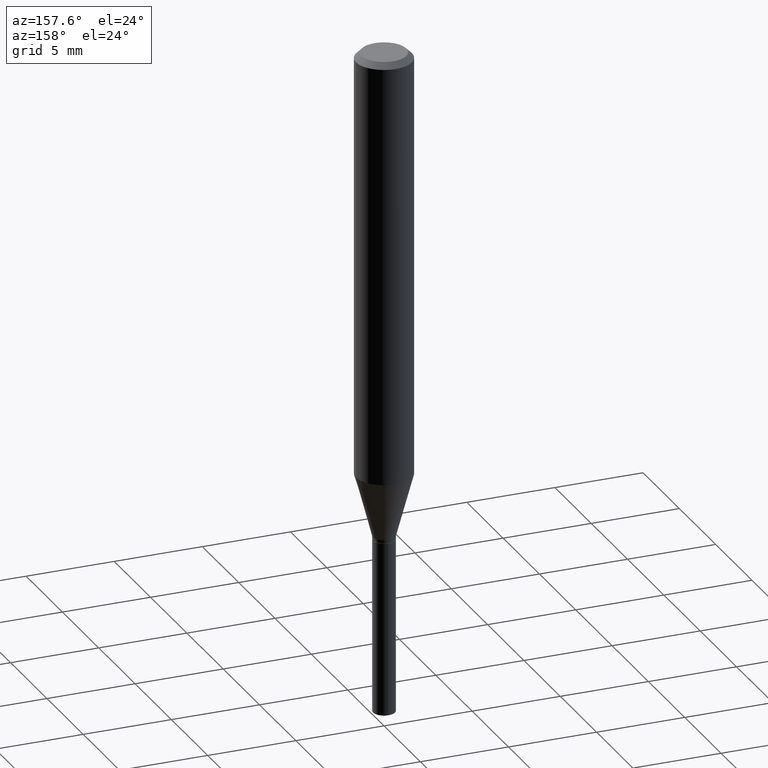
[diagram: clean part render]
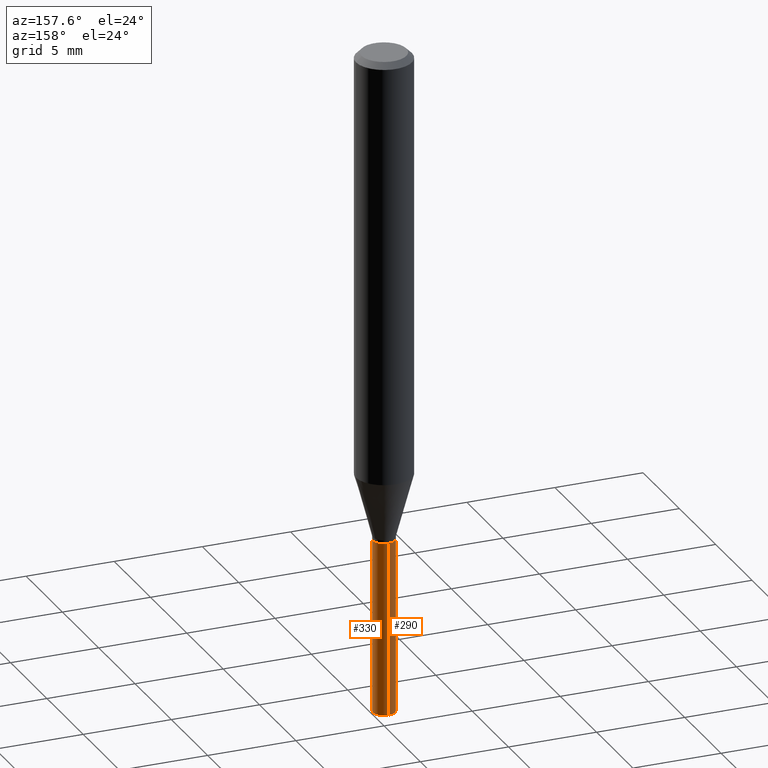
[diagram: same view with one multi-face feature highlighted, each face labeled with its STEP entity id]
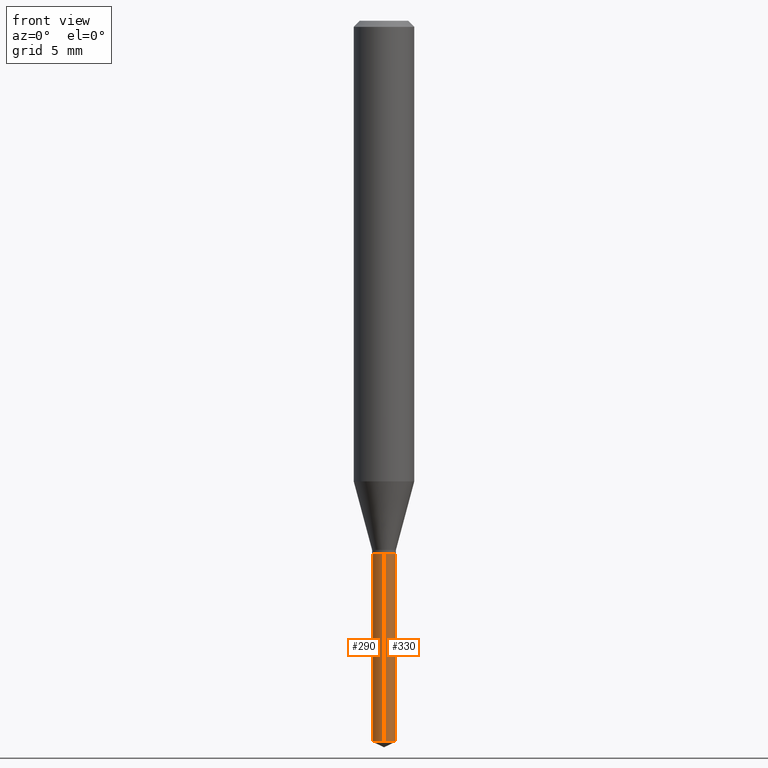
[diagram: same view with one multi-face feature highlighted, each face labeled with its STEP entity id]
A machine part, auxiliary view. The highlighted faces form ONE feature: a constant-radius fillet chain: 2 tangent blend faces with common blend radius 0.6248 mm. The faces share edges in the B-rep.
A second angle (front view) of the same feature is appended — it is thin or edge-on in the first view.
Their STEP definitions:
[1] entity #330 (Cylinder):
#8 = EDGE_CURVE ( 'NONE', #406, #255, #434, .T. ) ;
#11 = DIRECTION ( 'NONE',  ( -2.445399690415121810E-29, 3.491580316559632610E-15, 1.000000000000000000 ) ) ;
#15 = AXIS2_PLACEMENT_3D ( 'NONE', #85, #304, #462 ) ;
#37 = ORIENTED_EDGE ( 'NONE', *, *, #173, .F. ) ;
#41 = CIRCLE ( 'NONE', #15, 0.02460000000000000034 ) ;
#42 = EDGE_CURVE ( 'NONE', #309, #490, #384, .T. ) ;
#85 = CARTESIAN_POINT ( 'NONE',  ( 2.690015686803650369E-29, -3.840629472727460101E-15, -1.100000000000000089 ) ) ;
#108 = CARTESIAN_POINT ( 'NONE',  ( -1.717808818710552189E-16, -0.02460000000000384102, -1.099999999999999867 ) ) ;
#112 = ORIENTED_EDGE ( 'NONE', *, *, #42, .F. ) ;
#130 = VECTOR ( 'NONE', #11, 39.37007874015748143 ) ;
#154 = CARTESIAN_POINT ( 'NONE',  ( -1.717808818710552189E-16, -0.02460000000000384102, -1.099999999999999867 ) ) ;
#173 = EDGE_CURVE ( 'NONE', #490, #255, #41, .T. ) ;
#177 = ORIENTED_EDGE ( 'NONE', *, *, #380, .T. ) ;
#195 = CARTESIAN_POINT ( 'NONE',  ( 1.747935129970210836E-16, 0.02459999999999615966, -1.100000000000000089 ) ) ;
#197 = CYLINDRICAL_SURFACE ( 'NONE', #354, 0.02460000000000000034 ) ;
#216 = DIRECTION ( 'NONE',  ( -2.445399690415121810E-29, 3.491580316559632610E-15, 1.000000000000000000 ) ) ;
#240 = DIRECTION ( 'NONE',  ( -6.982962677686265922E-15, -1.000000000000000000, 5.552536572488340164E-15 ) ) ;
#241 = VECTOR ( 'NONE', #216, 39.37007874015748143 ) ;
#254 = CARTESIAN_POINT ( 'NONE',  ( 1.747935129970210343E-16, 0.02459999999999480658, -1.488528831609386982 ) ) ;
#255 = VERTEX_POINT ( 'NONE', #195 ) ;
#280 = DIRECTION ( 'NONE',  ( -2.445399690415121530E-29, 3.491580316559632610E-15, 1.000000000000000000 ) ) ;
#289 = CARTESIAN_POINT ( 'NONE',  ( 1.747935129970115187E-16, 0.02459999999999615966, -1.100000000000000089 ) ) ;
#304 = DIRECTION ( 'NONE',  ( -2.445399690415121530E-29, 3.491580316559632610E-15, 1.000000000000000000 ) ) ;
#309 = VERTEX_POINT ( 'NONE', #470 ) ;
#311 = CARTESIAN_POINT ( 'NONE',  ( 3.640123971338594615E-29, -5.197209093590707944E-15, -1.488528831609386982 ) ) ;
#314 = DIRECTION ( 'NONE',  ( -2.445399690415121530E-29, 3.491580316559632610E-15, 1.000000000000000000 ) ) ;
#323 = ORIENTED_EDGE ( 'NONE', *, *, #8, .T. ) ;
#330 = ADVANCED_FACE ( 'NONE', ( #351 ), #197, .T. ) ;
#351 = FACE_OUTER_BOUND ( 'NONE', #440, .T. ) ;
#354 = AXIS2_PLACEMENT_3D ( 'NONE', #433, #280, #240 ) ;
#380 = EDGE_CURVE ( 'NONE', #309, #406, #438, .T. ) ;
#384 = LINE ( 'NONE', #154, #130 ) ;
#406 = VERTEX_POINT ( 'NONE', #254 ) ;
#418 = AXIS2_PLACEMENT_3D ( 'NONE', #311, #314, #435 ) ;
#433 = CARTESIAN_POINT ( 'NONE',  ( 2.690015686803650369E-29, -3.840629472727460101E-15, -1.100000000000000089 ) ) ;
#434 = LINE ( 'NONE', #289, #241 ) ;
#435 = DIRECTION ( 'NONE',  ( -6.982962677686265922E-15, -1.000000000000000000, 0.000000000000000000 ) ) ;
#438 = CIRCLE ( 'NONE', #418, 0.02460000000000000034 ) ;
#440 = EDGE_LOOP ( 'NONE', ( #177, #323, #37, #112 ) ) ;
#462 = DIRECTION ( 'NONE',  ( -6.982962677686265922E-15, -1.000000000000000000, 5.552536572488340164E-15 ) ) ;
#470 = CARTESIAN_POINT ( 'NONE',  ( -1.717808818710457772E-16, -0.02460000000000520451, -1.488528831609386982 ) ) ;
#490 = VERTEX_POINT ( 'NONE', #108 ) ;
[2] entity #290 (Cylinder):
#2 = ORIENTED_EDGE ( 'NONE', *, *, #324, .T. ) ;
#8 = EDGE_CURVE ( 'NONE', #406, #255, #434, .T. ) ;
#10 = EDGE_CURVE ( 'NONE', #255, #490, #90, .T. ) ;
#11 = DIRECTION ( 'NONE',  ( -2.445399690415121810E-29, 3.491580316559632610E-15, 1.000000000000000000 ) ) ;
#32 = AXIS2_PLACEMENT_3D ( 'NONE', #349, #353, #277 ) ;
#34 = ORIENTED_EDGE ( 'NONE', *, *, #42, .T. ) ;
#42 = EDGE_CURVE ( 'NONE', #309, #490, #384, .T. ) ;
#90 = CIRCLE ( 'NONE', #174, 0.02460000000000000034 ) ;
#91 = DIRECTION ( 'NONE',  ( -6.982962677686265922E-15, -1.000000000000000000, 0.000000000000000000 ) ) ;
#102 = DIRECTION ( 'NONE',  ( -6.982962677686265922E-15, -1.000000000000000000, 5.552536572488340164E-15 ) ) ;
#108 = CARTESIAN_POINT ( 'NONE',  ( -1.717808818710552189E-16, -0.02460000000000384102, -1.099999999999999867 ) ) ;
#130 = VECTOR ( 'NONE', #11, 39.37007874015748143 ) ;
#133 = CARTESIAN_POINT ( 'NONE',  ( 3.640123971338594615E-29, -5.197209093590707944E-15, -1.488528831609386982 ) ) ;
#154 = CARTESIAN_POINT ( 'NONE',  ( -1.717808818710552189E-16, -0.02460000000000384102, -1.099999999999999867 ) ) ;
#174 = AXIS2_PLACEMENT_3D ( 'NONE', #317, #479, #102 ) ;
#195 = CARTESIAN_POINT ( 'NONE',  ( 1.747935129970210836E-16, 0.02459999999999615966, -1.100000000000000089 ) ) ;
#204 = FACE_OUTER_BOUND ( 'NONE', #485, .T. ) ;
#216 = DIRECTION ( 'NONE',  ( -2.445399690415121810E-29, 3.491580316559632610E-15, 1.000000000000000000 ) ) ;
#217 = CIRCLE ( 'NONE', #318, 0.02460000000000000034 ) ;
#241 = VECTOR ( 'NONE', #216, 39.37007874015748143 ) ;
#254 = CARTESIAN_POINT ( 'NONE',  ( 1.747935129970210343E-16, 0.02459999999999480658, -1.488528831609386982 ) ) ;
#255 = VERTEX_POINT ( 'NONE', #195 ) ;
#276 = ORIENTED_EDGE ( 'NONE', *, *, #8, .F. ) ;
#277 = DIRECTION ( 'NONE',  ( -6.982962677686265922E-15, -1.000000000000000000, 5.552536572488340164E-15 ) ) ;
#289 = CARTESIAN_POINT ( 'NONE',  ( 1.747935129970115187E-16, 0.02459999999999615966, -1.100000000000000089 ) ) ;
#290 = ADVANCED_FACE ( 'NONE', ( #204 ), #306, .T. ) ;
#306 = CYLINDRICAL_SURFACE ( 'NONE', #32, 0.02460000000000000034 ) ;
#309 = VERTEX_POINT ( 'NONE', #470 ) ;
#317 = CARTESIAN_POINT ( 'NONE',  ( 2.690015686803650369E-29, -3.840629472727460101E-15, -1.100000000000000089 ) ) ;
#318 = AXIS2_PLACEMENT_3D ( 'NONE', #133, #390, #91 ) ;
#324 = EDGE_CURVE ( 'NONE', #406, #309, #217, .T. ) ;
#349 = CARTESIAN_POINT ( 'NONE',  ( 2.690015686803650369E-29, -3.840629472727460101E-15, -1.100000000000000089 ) ) ;
#353 = DIRECTION ( 'NONE',  ( -2.445399690415121530E-29, 3.491580316559632610E-15, 1.000000000000000000 ) ) ;
#372 = ORIENTED_EDGE ( 'NONE', *, *, #10, .F. ) ;
#384 = LINE ( 'NONE', #154, #130 ) ;
#390 = DIRECTION ( 'NONE',  ( -2.445399690415121530E-29, 3.491580316559632610E-15, 1.000000000000000000 ) ) ;
#406 = VERTEX_POINT ( 'NONE', #254 ) ;
#434 = LINE ( 'NONE', #289, #241 ) ;
#470 = CARTESIAN_POINT ( 'NONE',  ( -1.717808818710457772E-16, -0.02460000000000520451, -1.488528831609386982 ) ) ;
#479 = DIRECTION ( 'NONE',  ( -2.445399690415121530E-29, 3.491580316559632610E-15, 1.000000000000000000 ) ) ;
#485 = EDGE_LOOP ( 'NONE', ( #276, #2, #34, #372 ) ) ;
#490 = VERTEX_POINT ( 'NONE', #108 ) ;